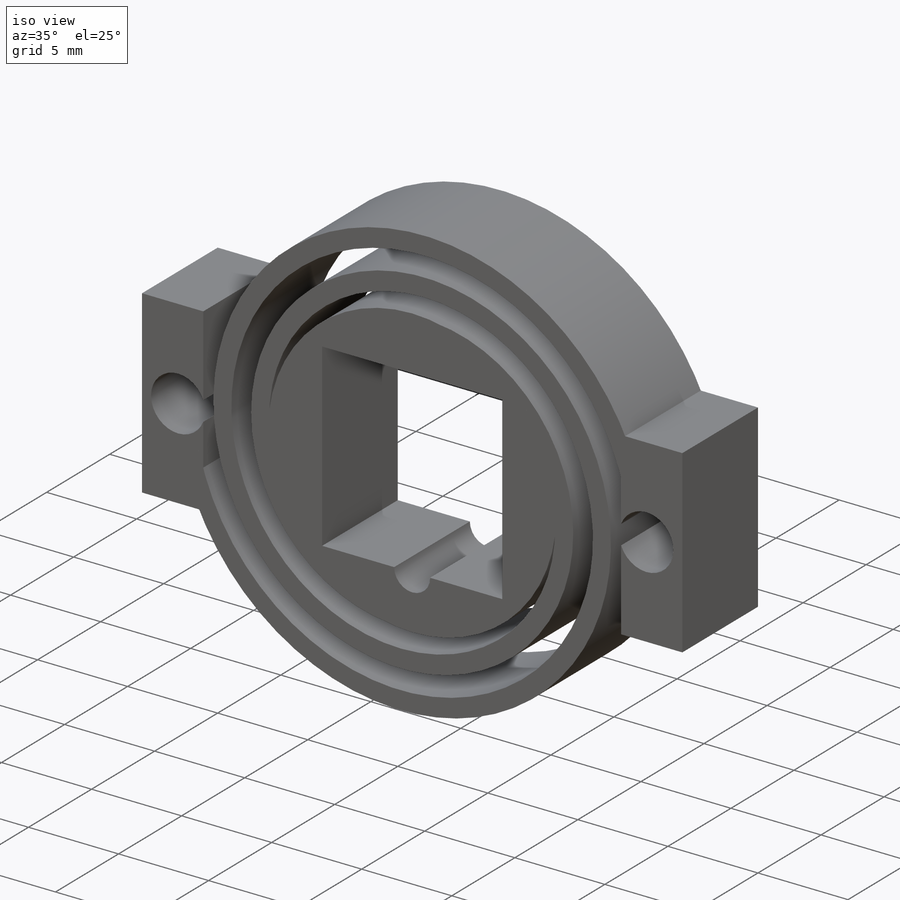
[diagram: iso view]
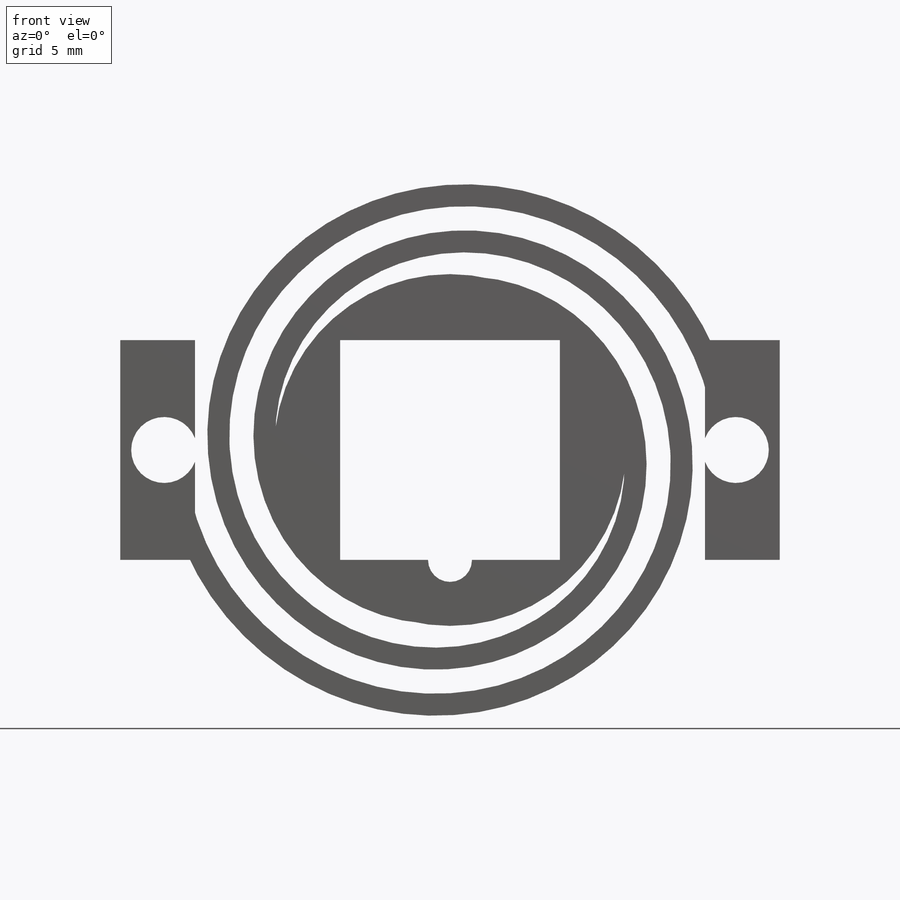
[diagram: front view]
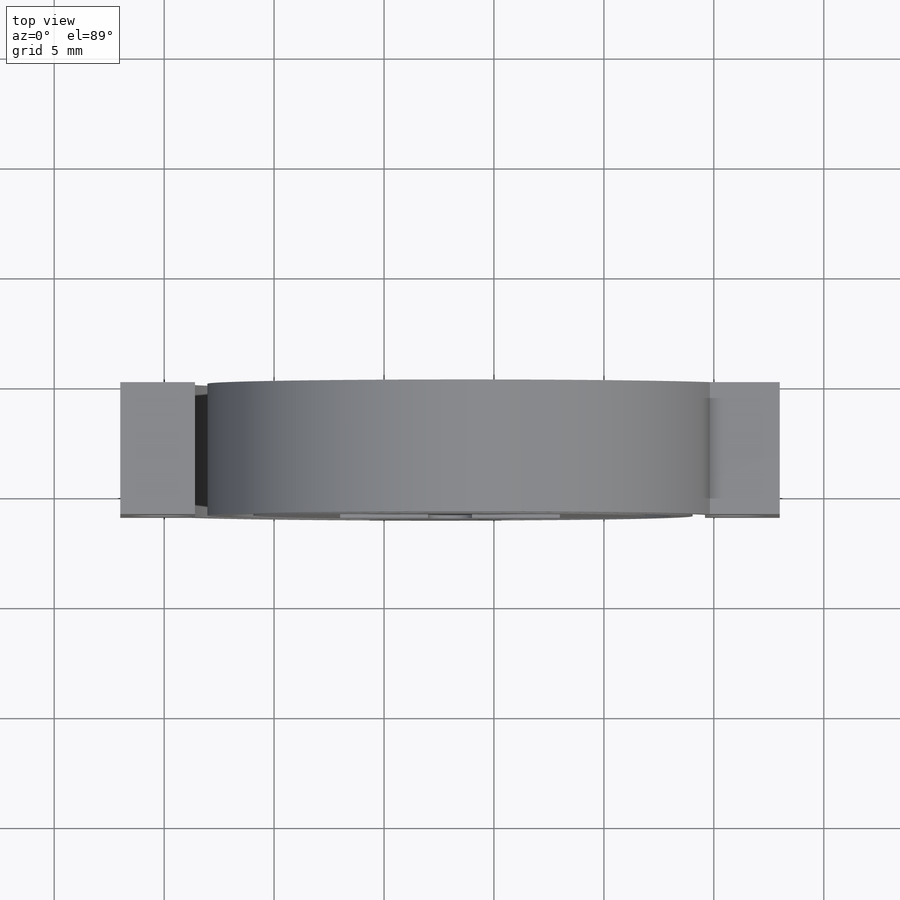
[diagram: top view]
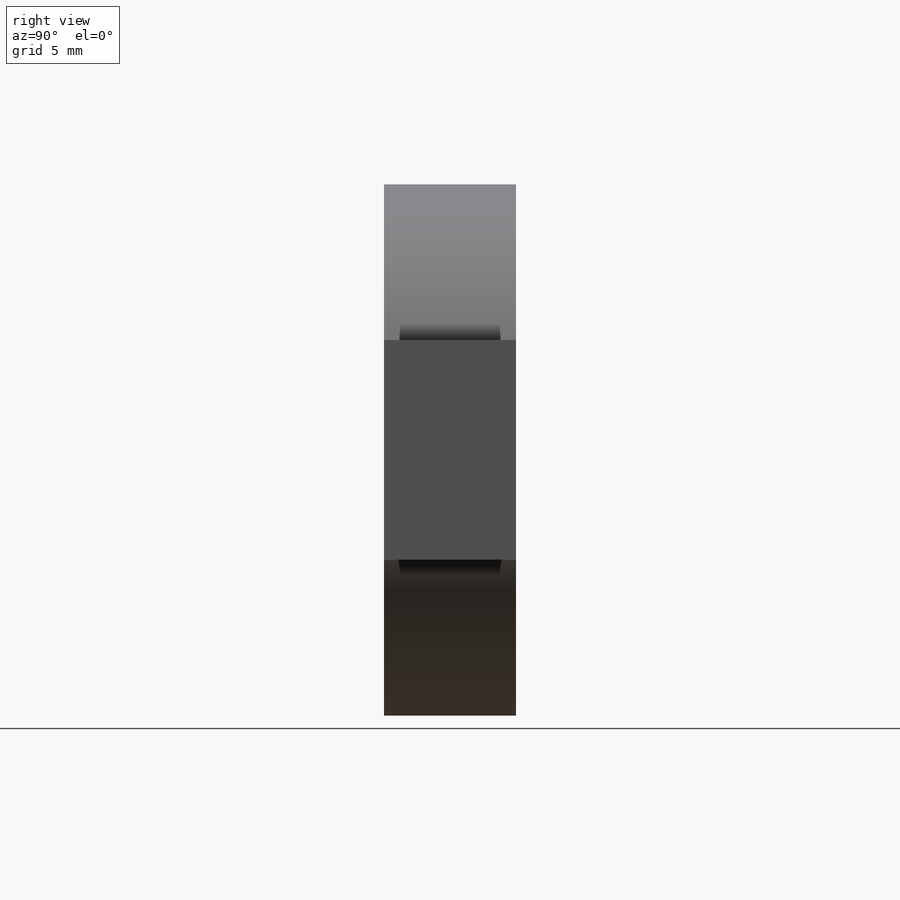
[diagram: right view]
SOLIDWORKS PART (.sldprt)
format: sldprt  version: not decoded by parser v0  size: 243,200 bytes
history: native  units: mm
features: sketch x4, plane x3, material x1, extrude x1, helix x1, sweep x1, pattern_circular x1 (+8 scaffold rows collapsed)
feature tree (20):
  scaffold x8  (default folders/planes/origin — collapsed)
  material  "Matériau <non spécifié>"
  plane  "Plan de face"
  plane  "Plan de dessus"
  plane  "Plan de droite"
  sketch  "Esquisse1"  dims[D1=4.0mm]
  extrude  "Boss.-Extru.1"  Depth=6mm
  sketch  "Esquisse2"  dims[D1=12.0mm]
  helix  "Hélice/Spirale1"  Pitch=4.2mm
  sketch  "Esquisse3D3"  dims[D1=0.5mm]
  sweep  "Balayage2"
  sketch  "Esquisse3D5"
  pattern_circular  "Répétition circulaire5"  Count=2 Angle=180deg
decode coverage: 6 of 8 modeling features carry decoded parameters
note: suppression state not decoded; provenance and decode notes live in map.json
